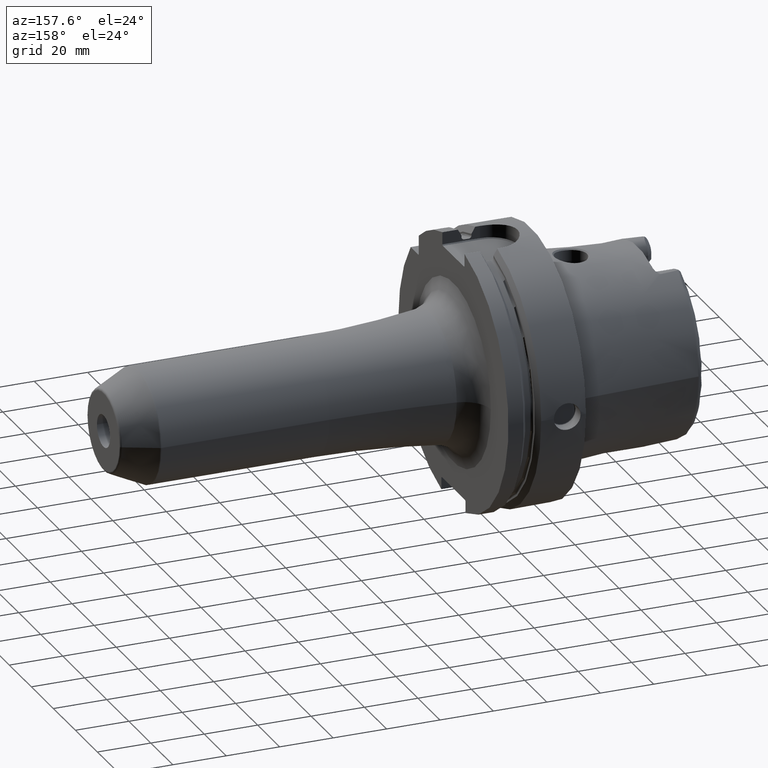
[diagram: clean part render]
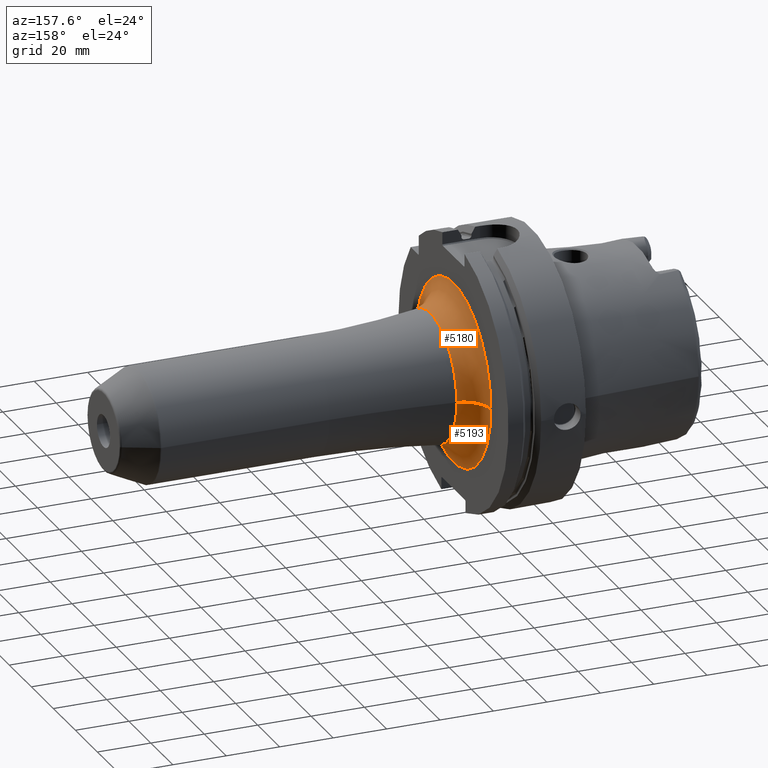
[diagram: same view with one multi-face feature highlighted, each face labeled with its STEP entity id]
A machine part, auxiliary view. The highlighted faces form ONE feature: a constant-radius fillet chain: 2 tangent blend faces with common blend radius 10 mm. The faces share edges in the B-rep.
Their STEP definitions:
[1] entity #5180 (Torus):
#1091=CARTESIAN_POINT('',(2.9E1,0.E0,0.E0));
#1092=DIRECTION('',(1.E0,0.E0,0.E0));
#1093=DIRECTION('',(0.E0,1.E0,1.059754911736E-14));
#1094=AXIS2_PLACEMENT_3D('',#1091,#1092,#1093);
#1810=CARTESIAN_POINT('',(3.9E1,3.399109804042E1,-2.816080701962E-13));
#1811=DIRECTION('',(0.E0,0.E0,1.E0));
#1812=DIRECTION('',(-1.E0,0.E0,0.E0));
#1813=AXIS2_PLACEMENT_3D('',#1810,#1811,#1812);
#1815=CARTESIAN_POINT('',(3.9E1,-3.399109804042E1,2.854938507824E-13));
#1816=DIRECTION('',(0.E0,0.E0,-1.E0));
#1817=DIRECTION('',(-1.E0,0.E0,0.E0));
#1818=AXIS2_PLACEMENT_3D('',#1815,#1816,#1817);
#1825=CARTESIAN_POINT('',(3.767647058823E1,0.E0,0.E0));
#1826=DIRECTION('',(1.E0,0.E0,0.E0));
#1827=DIRECTION('',(0.E0,1.E0,0.E0));
#1828=AXIS2_PLACEMENT_3D('',#1825,#1826,#1827);
#3341=CARTESIAN_POINT('',(2.9E1,3.399109804042E1,3.602223310363E-13));
#3342=CARTESIAN_POINT('',(2.9E1,-3.399109804042E1,-3.560596220949E-13));
#3343=VERTEX_POINT('',#3341);
#3344=VERTEX_POINT('',#3342);
#3345=CARTESIAN_POINT('',(3.767647058823E1,2.407907151220E1,0.E0));
#3346=CARTESIAN_POINT('',(3.767647058823E1,-2.407907151220E1,0.E0));
#3347=VERTEX_POINT('',#3345);
#3348=VERTEX_POINT('',#3346);
#5166=CARTESIAN_POINT('',(3.9E1,0.E0,0.E0));
#5167=DIRECTION('',(1.E0,0.E0,0.E0));
#5168=DIRECTION('',(0.E0,9.999939424486E-1,-3.480670348098E-3));
#5169=AXIS2_PLACEMENT_3D('',#5166,#5167,#5168);
#5170=TOROIDAL_SURFACE('',#5169,3.399109804042E1,1.E1);
#5171=ORIENTED_EDGE('',*,*,#4446,.F.);
#5173=ORIENTED_EDGE('',*,*,#5172,.T.);
#5175=ORIENTED_EDGE('',*,*,#5174,.T.);
#5177=ORIENTED_EDGE('',*,*,#5176,.F.);
#5178=EDGE_LOOP('',(#5171,#5173,#5175,#5177));
#5179=FACE_OUTER_BOUND('',#5178,.F.);
#5180=ADVANCED_FACE('',(#5179),#5170,.F.);
#1095=CIRCLE('',#1094,3.399109804042E1);
#1814=CIRCLE('',#1813,1.E1);
#1819=CIRCLE('',#1818,1.E1);
#1829=CIRCLE('',#1828,2.407907151220E1);
#4446=EDGE_CURVE('',#3343,#3344,#1095,.T.);
#5172=EDGE_CURVE('',#3343,#3347,#1814,.T.);
#5174=EDGE_CURVE('',#3347,#3348,#1829,.T.);
#5176=EDGE_CURVE('',#3344,#3348,#1819,.T.);
[2] entity #5193 (Torus):
#1096=CARTESIAN_POINT('',(2.9E1,0.E0,0.E0));
#1097=DIRECTION('',(1.E0,0.E0,0.E0));
#1098=DIRECTION('',(0.E0,-1.E0,-1.091917268301E-14));
#1099=AXIS2_PLACEMENT_3D('',#1096,#1097,#1098);
#1810=CARTESIAN_POINT('',(3.9E1,3.399109804042E1,-2.816080701962E-13));
#1811=DIRECTION('',(0.E0,0.E0,1.E0));
#1812=DIRECTION('',(-1.E0,0.E0,0.E0));
#1813=AXIS2_PLACEMENT_3D('',#1810,#1811,#1812);
#1815=CARTESIAN_POINT('',(3.9E1,-3.399109804042E1,2.854938507824E-13));
#1816=DIRECTION('',(0.E0,0.E0,-1.E0));
#1817=DIRECTION('',(-1.E0,0.E0,0.E0));
#1818=AXIS2_PLACEMENT_3D('',#1815,#1816,#1817);
#1820=CARTESIAN_POINT('',(3.767647058823E1,0.E0,0.E0));
#1821=DIRECTION('',(1.E0,0.E0,0.E0));
#1822=DIRECTION('',(0.E0,-1.E0,0.E0));
#1823=AXIS2_PLACEMENT_3D('',#1820,#1821,#1822);
#3341=CARTESIAN_POINT('',(2.9E1,3.399109804042E1,3.602223310363E-13));
#3342=CARTESIAN_POINT('',(2.9E1,-3.399109804042E1,-3.560596220949E-13));
#3343=VERTEX_POINT('',#3341);
#3344=VERTEX_POINT('',#3342);
#3345=CARTESIAN_POINT('',(3.767647058823E1,2.407907151220E1,0.E0));
#3346=CARTESIAN_POINT('',(3.767647058823E1,-2.407907151220E1,0.E0));
#3347=VERTEX_POINT('',#3345);
#3348=VERTEX_POINT('',#3346);
#5181=CARTESIAN_POINT('',(3.9E1,0.E0,0.E0));
#5182=DIRECTION('',(1.E0,0.E0,0.E0));
#5183=DIRECTION('',(0.E0,-9.999939424486E-1,3.480670348097E-3));
#5184=AXIS2_PLACEMENT_3D('',#5181,#5182,#5183);
#5185=TOROIDAL_SURFACE('',#5184,3.399109804042E1,1.E1);
#5186=ORIENTED_EDGE('',*,*,#4448,.F.);
#5187=ORIENTED_EDGE('',*,*,#5176,.T.);
#5189=ORIENTED_EDGE('',*,*,#5188,.T.);
#5190=ORIENTED_EDGE('',*,*,#5172,.F.);
#5191=EDGE_LOOP('',(#5186,#5187,#5189,#5190));
#5192=FACE_OUTER_BOUND('',#5191,.F.);
#5193=ADVANCED_FACE('',(#5192),#5185,.F.);
#1100=CIRCLE('',#1099,3.399109804042E1);
#1814=CIRCLE('',#1813,1.E1);
#1819=CIRCLE('',#1818,1.E1);
#1824=CIRCLE('',#1823,2.407907151220E1);
#4448=EDGE_CURVE('',#3344,#3343,#1100,.T.);
#5172=EDGE_CURVE('',#3343,#3347,#1814,.T.);
#5176=EDGE_CURVE('',#3344,#3348,#1819,.T.);
#5188=EDGE_CURVE('',#3348,#3347,#1824,.T.);